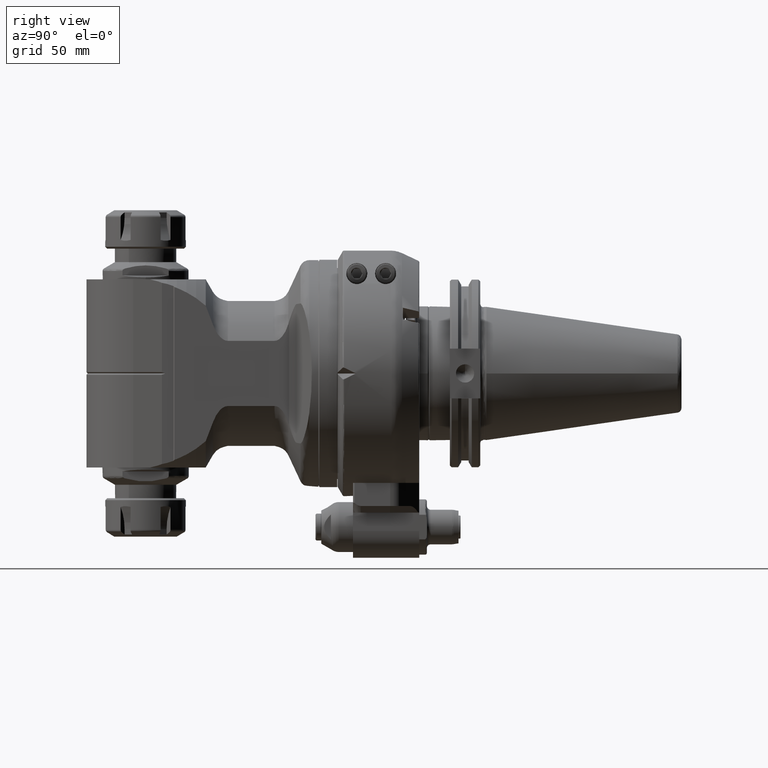
[diagram: clean part render]
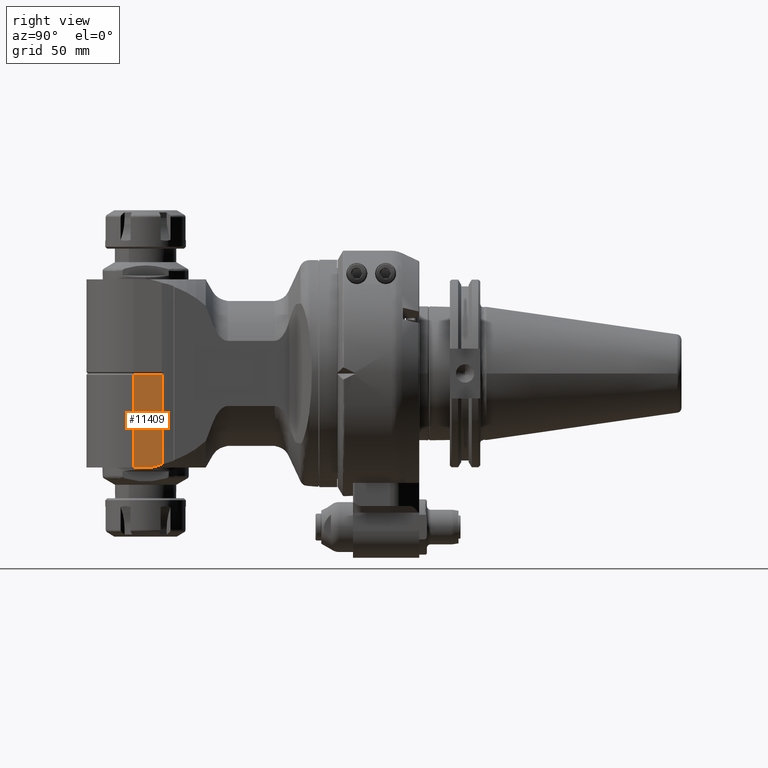
[diagram: same view with one face highlighted and labeled with its STEP entity id]
A machine part, right view. The second image highlights one B-rep face of the part: STEP entity #11409.
In plain terms, the highlighted planar face has unit normal (-0.9781, 0.2079, 0).
Its self-contained STEP definition (entity closure, byte-faithful):
#68=(
BOUNDED_CURVE()
B_SPLINE_CURVE(2,(#17603,#17604,#17605),.UNSPECIFIED.,.F.,.F.)
B_SPLINE_CURVE_WITH_KNOTS((3,3),(0.608380908926358,0.693281102416218),
 .UNSPECIFIED.)
CURVE()
GEOMETRIC_REPRESENTATION_ITEM()
RATIONAL_B_SPLINE_CURVE((1.05761844635395,1.05761844635397,1.05649635620695))
REPRESENTATION_ITEM('')
);
#190=B_SPLINE_CURVE_WITH_KNOTS('',3,(#17625,#17626,#17627,#17628),
 .UNSPECIFIED.,.F.,.F.,(4,4),(0.,1.),.UNSPECIFIED.);
#440=ELLIPSE('',#12229,1321.21671135135,153.398067958537);
#1585=FACE_OUTER_BOUND('',#2307,.T.);
#2307=EDGE_LOOP('',(#7703,#7704,#7705,#7706,#7707,#7708,#7709));
#3120=LINE('',#17550,#3873);
#3126=LINE('',#17619,#3879);
#3127=LINE('',#17623,#3880);
#3128=LINE('',#17630,#3881);
#3873=VECTOR('',#13758,10.);
#3879=VECTOR('',#13780,14.5000000000197);
#3880=VECTOR('',#13783,8.87507655635703);
#3881=VECTOR('',#13786,48.33431457505);
#4672=VERTEX_POINT('',#17545);
#4673=VERTEX_POINT('',#17549);
#4680=VERTEX_POINT('',#17601);
#4684=VERTEX_POINT('',#17617);
#4685=VERTEX_POINT('',#17621);
#4686=VERTEX_POINT('',#17622);
#4687=VERTEX_POINT('',#17624);
#5850=EDGE_CURVE('',#4673,#4672,#3120,.T.);
#5860=EDGE_CURVE('',#4680,#4672,#68,.T.);
#5867=EDGE_CURVE('',#4680,#4684,#3126,.T.);
#5868=EDGE_CURVE('',#4685,#4686,#3127,.T.);
#5869=EDGE_CURVE('',#4687,#4685,#190,.T.);
#5870=EDGE_CURVE('',#4687,#4673,#440,.T.);
#5871=EDGE_CURVE('',#4686,#4684,#3128,.T.);
#7703=ORIENTED_EDGE('',*,*,#5868,.F.);
#7704=ORIENTED_EDGE('',*,*,#5869,.F.);
#7705=ORIENTED_EDGE('',*,*,#5870,.T.);
#7706=ORIENTED_EDGE('',*,*,#5850,.T.);
#7707=ORIENTED_EDGE('',*,*,#5860,.F.);
#7708=ORIENTED_EDGE('',*,*,#5867,.T.);
#7709=ORIENTED_EDGE('',*,*,#5871,.F.);
#11063=PLANE('',#12228);
#11409=ADVANCED_FACE('',(#1585),#11063,.F.);
#12228=AXIS2_PLACEMENT_3D('',#17620,#13781,#13782);
#12229=AXIS2_PLACEMENT_3D('',#17629,#13784,#13785);
#13758=DIRECTION('',(0.,-1.,0.));
#13780=DIRECTION('',(0.978147596478923,-4.0929745853061E-8,-0.207911710835405));
#13781=DIRECTION('center_axis',(-0.207911690817799,0.,-0.978147600733797));
#13782=DIRECTION('ref_axis',(0.978147600733797,0.,-0.207911690817799));
#13783=DIRECTION('',(0.978147600733797,0.,-0.207911690817799));
#13784=DIRECTION('center_axis',(0.207911690817799,0.,0.978147600733797));
#13785=DIRECTION('ref_axis',(-0.978147600733797,-2.68897119471548E-16,0.207911690817799));
#13786=DIRECTION('',(1.411256231369E-13,-1.,-3.895655222007E-14));
#17545=CARTESIAN_POINT('',(269.559753011069,0.640195355068155,33.5000000008944));
#17549=CARTESIAN_POINT('',(269.5597530195,47.18985730412,33.5));
#17550=CARTESIAN_POINT('',(269.559753019579,-35.4000012000003,33.5));
#17601=CARTESIAN_POINT('',(270.325219230434,0.665685746666039,33.3372952607912));
#17603=CARTESIAN_POINT('Ctrl Pts',(270.325219204703,0.665685424967378,33.3372951396155));
#17604=CARTESIAN_POINT('Ctrl Pts',(269.942892172149,0.665685424967819,33.4185612590886));
#17605=CARTESIAN_POINT('Ctrl Pts',(269.559753011103,0.640195357377542,33.5000000018016));
#17617=CARTESIAN_POINT('',(284.5083594154,0.6656854249496,30.32257562275));
#17619=CARTESIAN_POINT('',(270.3252192664,0.6656860184309,33.33729542987));
#17620=CARTESIAN_POINT('Origin',(251.01662128,-70.8000024,37.44146432516));
#17621=CARTESIAN_POINT('',(275.8272245754,49.,32.16780779572));
#17622=CARTESIAN_POINT('',(284.5083594153,49.,30.32257562275));
#17623=CARTESIAN_POINT('',(275.8272245754,49.,32.16780779572));
#17624=CARTESIAN_POINT('',(271.7592494227,47.98986308027,33.03248260714));
#17625=CARTESIAN_POINT('Ctrl Pts',(271.7592494227,47.98986308027,33.03248260714));
#17626=CARTESIAN_POINT('Ctrl Pts',(273.1139632922,48.33195312284,32.74452928498));
#17627=CARTESIAN_POINT('Ctrl Pts',(274.4699790139,48.66856440992,32.45629924562));
#17628=CARTESIAN_POINT('Ctrl Pts',(275.8272245754,49.,32.16780779572));
#17629=CARTESIAN_POINT('Origin',(1499.23378480247,7.105427357601E-14,-227.875284170737));
#17630=CARTESIAN_POINT('',(284.5083594153,49.,30.32257562275));